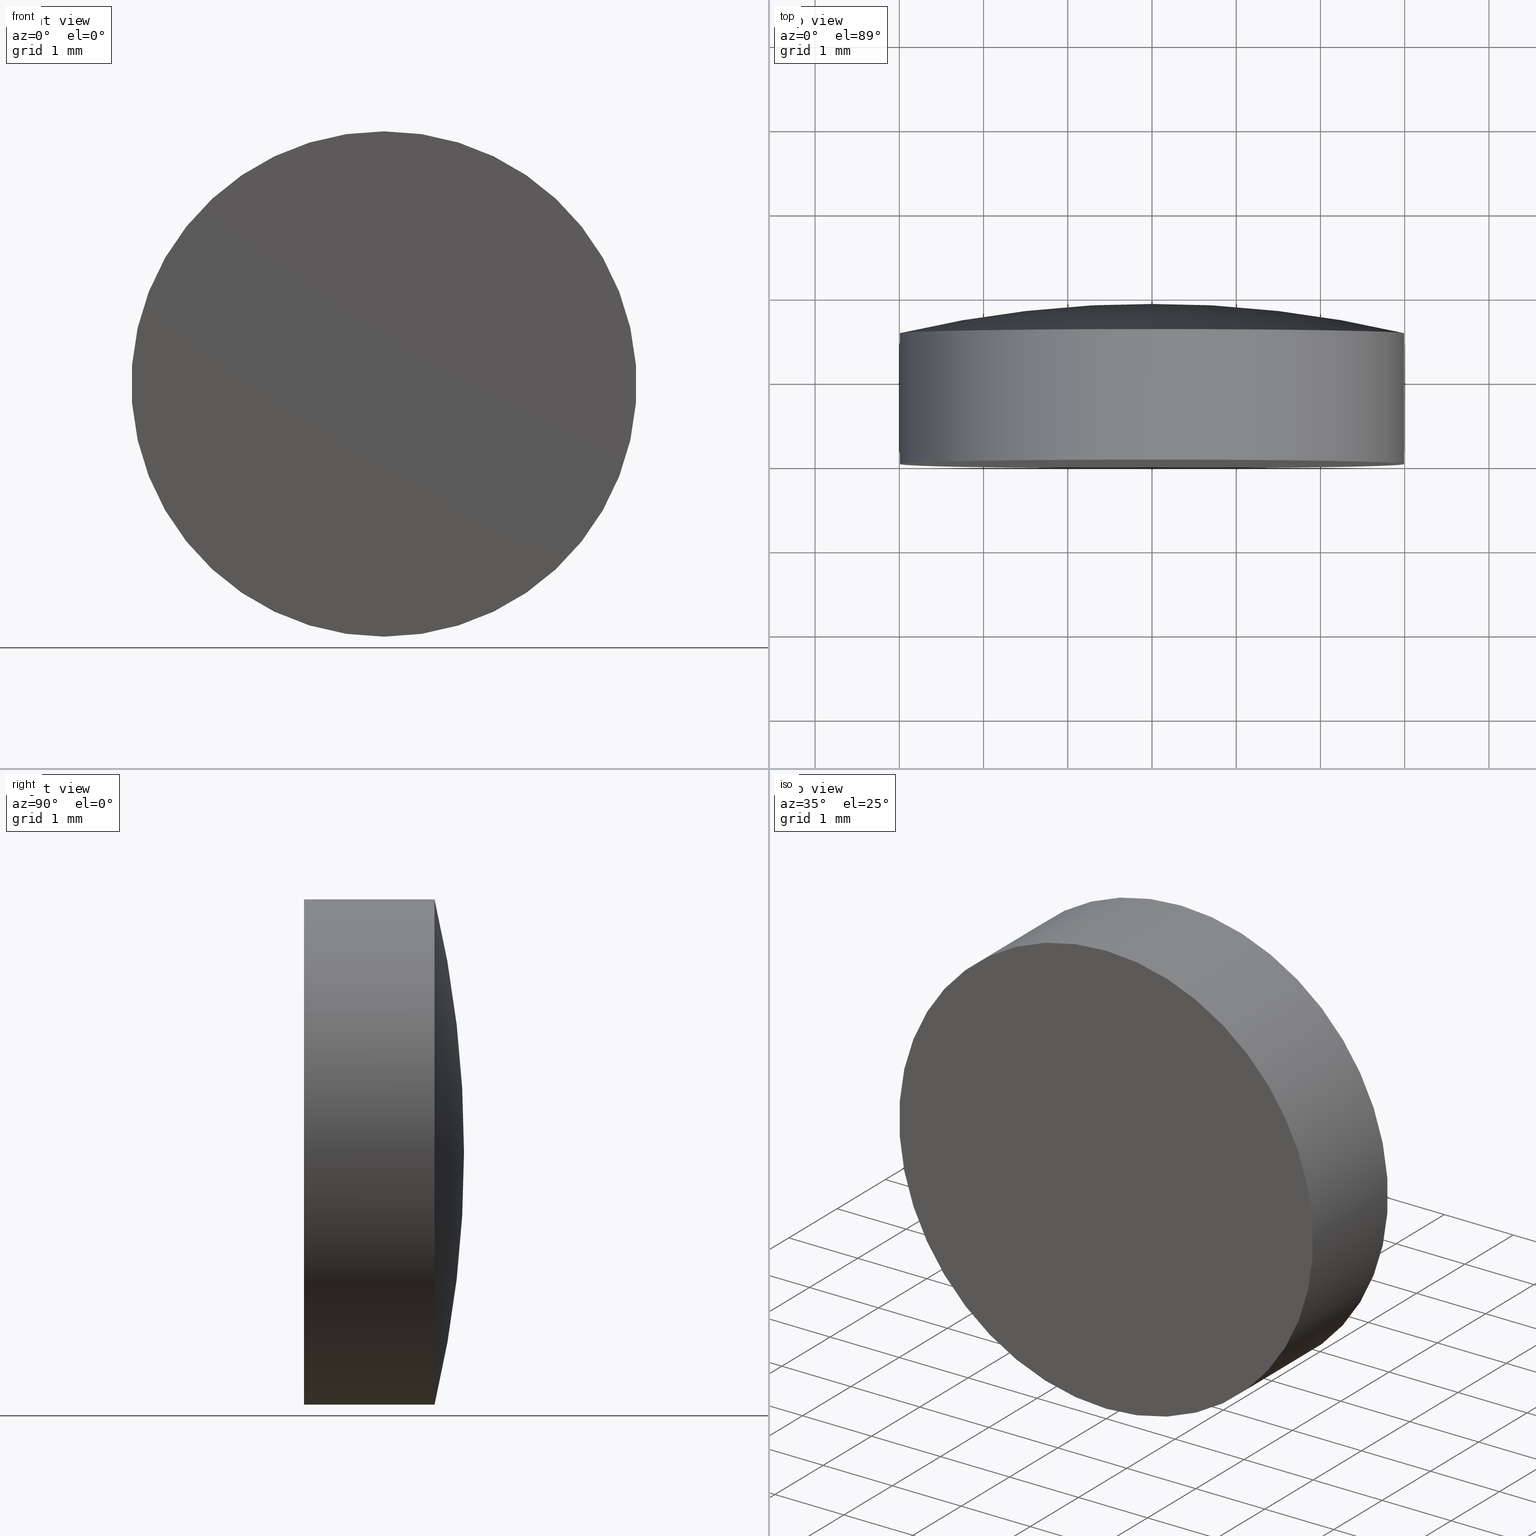
[diagram: canonical four-view strip — front | top / right | iso, engineering-drawing reading convention]
A machine part, canonical four-view strip (front | top / right | iso — engineering-drawing reading convention). The complete STEP part file that produces these views, byte-faithful:
ISO-10303-21;
HEADER;
FILE_DESCRIPTION (( 'STEP AP203' ),
    '1' );
FILE_NAME ('100587.STEP',
    '2024-05-10T01:35:32',
    ( '' ),
    ( '' ),
    'SwSTEP 2.0',
    'SolidWorks 2020',
    '' );
FILE_SCHEMA (( 'CONFIG_CONTROL_DESIGN' ));
ENDSEC;

DATA;
#1 = DIRECTION ( 'NONE',  ( -0.000000000000000000, 1.000000000000000000, -0.000000000000000000 ) ) ;
#2 = DIRECTION ( 'NONE',  ( 0.000000000000000000, 0.000000000000000000, 1.000000000000000000 ) ) ;
#3 = CYLINDRICAL_SURFACE ( 'NONE', #170, 3.000000000000000000 ) ;
#4 = AXIS2_PLACEMENT_3D ( 'NONE', #130, #193, #22 ) ;
#5 = APPROVAL ( #113, 'δָ��' ) ;
#6 = DATE_AND_TIME ( #129, #164 ) ;
#7 = COORDINATED_UNIVERSAL_TIME_OFFSET ( 8, 0, .AHEAD. ) ;
#8 = CALENDAR_DATE ( 2024, 10, 5 ) ;
#9 = APPROVAL_STATUS ( 'not_yet_approved' ) ;
#10 = ORIENTED_EDGE ( 'NONE', *, *, #43, .T. ) ;
#11 = ADVANCED_FACE ( 'NONE', ( #17 ), #42, .T. ) ;
#12 = VECTOR ( 'NONE', #157, 1000.000000000000000 ) ;
#13 = EDGE_LOOP ( 'NONE', ( #106, #10, #148, #120 ) ) ;
#14 = VERTEX_POINT ( 'NONE', #156 ) ;
#15 = DIRECTION ( 'NONE',  ( -0.000000000000000000, 1.000000000000000000, -0.000000000000000000 ) ) ;
#16 = ORIENTED_EDGE ( 'NONE', *, *, #102, .F. ) ;
#17 = FACE_OUTER_BOUND ( 'NONE', #29, .T. ) ;
#18 = DATE_AND_TIME ( #96, #175 ) ;
#19 = PERSON_AND_ORGANIZATION ( #199, #179 ) ;
#20 = AXIS2_PLACEMENT_3D ( 'NONE', #112, #1, #173 ) ;
#21 = PERSON_AND_ORGANIZATION ( #199, #179 ) ;
#22 = DIRECTION ( 'NONE',  ( 1.000000000000000000, 0.000000000000000000, 0.000000000000000000 ) ) ;
#23 = VERTEX_POINT ( 'NONE', #139 ) ;
#24 = DIRECTION ( 'NONE',  ( -0.000000000000000000, 1.000000000000000000, -0.000000000000000000 ) ) ;
#25 = PRODUCT_DEFINITION ( 'δ֪', '', #132, #93 ) ;
#26 = CARTESIAN_POINT ( 'NONE',  ( 0.000000000000000000, -4.336808689942017736E-16, 0.000000000000000000 ) ) ;
#27 = CIRCLE ( 'NONE', #100, 3.000000000000000000 ) ;
#28 = DIRECTION ( 'NONE',  ( -0.000000000000000000, 1.000000000000000000, -0.000000000000000000 ) ) ;
#29 = EDGE_LOOP ( 'NONE', ( #40, #146, #165, #149 ) ) ;
#30 = PRODUCT_DEFINITION_SHAPE ( 'NONE', 'NONE',  #25 ) ;
#31 = ADVANCED_BREP_SHAPE_REPRESENTATION ( '100587', ( #191, #4 ), #37 ) ;
#32 = SECURITY_CLASSIFICATION ( '', '', #99 ) ;
#33 = PERSON_AND_ORGANIZATION ( #199, #179 ) ;
#34 = DATE_AND_TIME ( #36, #196 ) ;
#35 = PERSON_AND_ORGANIZATION ( #199, #179 ) ;
#36 = CALENDAR_DATE ( 2024, 10, 5 ) ;
#37 =( GEOMETRIC_REPRESENTATION_CONTEXT ( 3 ) GLOBAL_UNCERTAINTY_ASSIGNED_CONTEXT ( ( #110 ) ) GLOBAL_UNIT_ASSIGNED_CONTEXT ( ( #116, #118, #161 ) ) REPRESENTATION_CONTEXT ( 'NONE', 'WORKASPACE' ) );
#38 = ADVANCED_FACE ( 'NONE', ( #127 ), #3, .T. ) ;
#39 = CIRCLE ( 'NONE', #64, 3.000000000000000000 ) ;
#40 = ORIENTED_EDGE ( 'NONE', *, *, #190, .T. ) ;
#41 = APPROVAL_PERSON_ORGANIZATION ( #19, #167, #80 ) ;
#42 = CYLINDRICAL_SURFACE ( 'NONE', #154, 3.000000000000000000 ) ;
#43 = EDGE_CURVE ( 'NONE', #14, #140, #27, .T. ) ;
#44 = CARTESIAN_POINT ( 'NONE',  ( 3.673940397442059375E-16, 1.549999999999999378, -2.999999999999999112 ) ) ;
#45 = DIRECTION ( 'NONE',  ( 0.000000000000000000, 0.000000000000000000, 1.000000000000000000 ) ) ;
#46 = TOROIDAL_SURFACE ( 'NONE', #82, 0.01425091764846756967, 12.90999999999999481 ) ;
#47 = LINE ( 'NONE', #172, #70 ) ;
#48 = CIRCLE ( 'NONE', #150, 3.000000000000000000 ) ;
#49 = CARTESIAN_POINT ( 'NONE',  ( 0.000000000000000000, 1.900000000000000133, 3.000000000000000000 ) ) ;
#50 = APPLICATION_PROTOCOL_DEFINITION ( 'international standard', 'config_control_design', 1994, #115 ) ;
#51 = APPROVAL_PERSON_ORGANIZATION ( #163, #142, #131 ) ;
#52 = CC_DESIGN_PERSON_AND_ORGANIZATION_ASSIGNMENT ( #35, #78, ( #132 ) ) ;
#53 = PERSON_AND_ORGANIZATION_ROLE ( 'creator' ) ;
#54 = DATE_AND_TIME ( #177, #103 ) ;
#55 = EDGE_CURVE ( 'NONE', #140, #134, #168, .T. ) ;
#56 = CARTESIAN_POINT ( 'NONE',  ( 0.000000000000000000, 1.900000000000000133, 0.000000000000000000 ) ) ;
#57 = CC_DESIGN_APPROVAL ( #167, ( #132 ) ) ;
#58 = DIRECTION ( 'NONE',  ( -0.000000000000000000, 1.000000000000000000, -0.000000000000000000 ) ) ;
#59 = DIRECTION ( 'NONE',  ( 0.000000000000000000, 0.000000000000000000, 1.000000000000000000 ) ) ;
#60 = DIRECTION ( 'NONE',  ( 0.000000000000000000, -1.000000000000000000, 0.000000000000000000 ) ) ;
#61 = DIRECTION ( 'NONE',  ( 0.000000000000000000, 0.000000000000000000, 1.000000000000000000 ) ) ;
#62 = PRODUCT ( '100587', '100587', '', ( #178 ) ) ;
#63 = CC_DESIGN_PERSON_AND_ORGANIZATION_ASSIGNMENT ( #33, #81, ( #62 ) ) ;
#64 = AXIS2_PLACEMENT_3D ( 'NONE', #155, #24, #94 ) ;
#65 = PERSON_AND_ORGANIZATION ( #199, #179 ) ;
#66 = APPLICATION_PROTOCOL_DEFINITION ( 'international standard', 'config_control_design', 1994, #198 ) ;
#67 = PERSON_AND_ORGANIZATION_ROLE ( 'classification_officer' ) ;
#68 = PRODUCT_RELATED_PRODUCT_CATEGORY ( 'detail', '', ( #62 ) ) ;
#69 = CIRCLE ( 'NONE', #188, 12.90999999999999481 ) ;
#70 = VECTOR ( 'NONE', #141, 1000.000000000000000 ) ;
#71 = CC_DESIGN_DATE_AND_TIME_ASSIGNMENT ( #54, #114, ( #25 ) ) ;
#72 = CARTESIAN_POINT ( 'NONE',  ( 0.000000000000000000, -1.836970198721029934E-16, 0.000000000000000000 ) ) ;
#73 = DIRECTION ( 'NONE',  ( -0.000000000000000000, 1.000000000000000000, -0.000000000000000000 ) ) ;
#74 = CC_DESIGN_APPROVAL ( #142, ( #32 ) ) ;
#75 = ORIENTED_EDGE ( 'NONE', *, *, #79, .T. ) ;
#76 = CARTESIAN_POINT ( 'NONE',  ( 1.745234068310833202E-18, -11.00999213444167957, -0.01425091764846756967 ) ) ;
#77 = CARTESIAN_POINT ( 'NONE',  ( 0.000000000000000000, -11.00999213444167957, 0.000000000000000000 ) ) ;
#78 = PERSON_AND_ORGANIZATION_ROLE ( 'design_supplier' ) ;
#79 = EDGE_CURVE ( 'NONE', #166, #134, #39, .T. ) ;
#80 = APPROVAL_ROLE ( '' ) ;
#81 = PERSON_AND_ORGANIZATION_ROLE ( 'design_owner' ) ;
#82 = AXIS2_PLACEMENT_3D ( 'NONE', #77, #15, #45 ) ;
#83 = PERSON_AND_ORGANIZATION ( #199, #179 ) ;
#84 = APPROVAL_DATE_TIME ( #18, #142 ) ;
#85 = CC_DESIGN_SECURITY_CLASSIFICATION ( #32, ( #132 ) ) ;
#86 = EDGE_LOOP ( 'NONE', ( #183, #75, #105 ) ) ;
#87 = ORIENTED_EDGE ( 'NONE', *, *, #43, .F. ) ;
#88 = ORIENTED_EDGE ( 'NONE', *, *, #119, .T. ) ;
#89 = APPROVAL_PERSON_ORGANIZATION ( #83, #5, #194 ) ;
#90 = CARTESIAN_POINT ( 'NONE',  ( 0.000000000000000000, -11.00999213444167957, 0.000000000000000000 ) ) ;
#91 = FACE_OUTER_BOUND ( 'NONE', #104, .T. ) ;
#92 = DIRECTION ( 'NONE',  ( -0.000000000000000000, 1.000000000000000000, -0.000000000000000000 ) ) ;
#93 = DESIGN_CONTEXT ( 'detailed design', #115, 'design' ) ;
#94 = DIRECTION ( 'NONE',  ( 0.000000000000000000, 0.000000000000000000, 1.000000000000000000 ) ) ;
#95 = DIRECTION ( 'NONE',  ( 0.000000000000000000, 0.000000000000000000, 1.000000000000000000 ) ) ;
#96 = CALENDAR_DATE ( 2024, 10, 5 ) ;
#97 = APPROVAL_DATE_TIME ( #34, #5 ) ;
#98 = APPROVAL_STATUS ( 'not_yet_approved' ) ;
#99 = SECURITY_CLASSIFICATION_LEVEL ( 'unclassified' ) ;
#100 = AXIS2_PLACEMENT_3D ( 'NONE', #187, #58, #2 ) ;
#101 = COORDINATED_UNIVERSAL_TIME_OFFSET ( 8, 0, .AHEAD. ) ;
#102 = EDGE_CURVE ( 'NONE', #134, #23, #128, .T. ) ;
#103 = LOCAL_TIME ( 9, 35, 32.00000000000000000, #159 ) ;
#104 = EDGE_LOOP ( 'NONE', ( #88, #126, #16 ) ) ;
#105 = ORIENTED_EDGE ( 'NONE', *, *, #102, .T. ) ;
#106 = ORIENTED_EDGE ( 'NONE', *, *, #197, .F. ) ;
#107 = FACE_OUTER_BOUND ( 'NONE', #185, .T. ) ;
#108 = TOROIDAL_SURFACE ( 'NONE', #162, 0.01425091764846756967, 12.90999999999999481 ) ;
#109 = CARTESIAN_POINT ( 'NONE',  ( 0.000000000000000000, 1.549999999999999378, 2.999999999999999112 ) ) ;
#110 = UNCERTAINTY_MEASURE_WITH_UNIT (LENGTH_MEASURE( 1.000000000000000082E-05 ), #116, 'distance_accuracy_value', 'NONE');
#111 = CARTESIAN_POINT ( 'NONE',  ( 0.000000000000000000, -4.336808689942017736E-16, 3.000000000000000000 ) ) ;
#112 = CARTESIAN_POINT ( 'NONE',  ( 0.000000000000000000, 1.549999999999999600, 0.000000000000000000 ) ) ;
#113 = APPROVAL_STATUS ( 'not_yet_approved' ) ;
#114 = DATE_TIME_ROLE ( 'creation_date' ) ;
#115 = APPLICATION_CONTEXT ( 'configuration controlled 3d designs of mechanical parts and assemblies' ) ;
#116 =( LENGTH_UNIT ( ) NAMED_UNIT ( * ) SI_UNIT ( .MILLI., .METRE. ) );
#117 = DATE_AND_TIME ( #8, #184 ) ;
#118 =( NAMED_UNIT ( * ) PLANE_ANGLE_UNIT ( ) SI_UNIT ( $, .RADIAN. ) );
#119 = EDGE_CURVE ( 'NONE', #134, #166, #135, .T. ) ;
#120 = ORIENTED_EDGE ( 'NONE', *, *, #79, .F. ) ;
#121 = DIRECTION ( 'NONE',  ( 1.000000000000000000, 0.000000000000000000, 1.224646799147353207E-16 ) ) ;
#122 = CC_DESIGN_PERSON_AND_ORGANIZATION_ASSIGNMENT ( #21, #67, ( #32 ) ) ;
#123 = CC_DESIGN_PERSON_AND_ORGANIZATION_ASSIGNMENT ( #65, #174, ( #25 ) ) ;
#124 = DIRECTION ( 'NONE',  ( 0.000000000000000000, 0.000000000000000000, 1.000000000000000000 ) ) ;
#125 = AXIS2_PLACEMENT_3D ( 'NONE', #72, #60, #200 ) ;
#126 = ORIENTED_EDGE ( 'NONE', *, *, #152, .T. ) ;
#127 = FACE_OUTER_BOUND ( 'NONE', #13, .T. ) ;
#128 = CIRCLE ( 'NONE', #181, 12.90999999999999481 ) ;
#129 = CALENDAR_DATE ( 2024, 10, 5 ) ;
#130 = CARTESIAN_POINT ( 'NONE',  ( 0.000000000000000000, 0.000000000000000000, 0.000000000000000000 ) ) ;
#131 = APPROVAL_ROLE ( '' ) ;
#132 = PRODUCT_DEFINITION_FORMATION_WITH_SPECIFIED_SOURCE ( '�κ�', '', #62, .NOT_KNOWN. ) ;
#133 = ADVANCED_FACE ( 'NONE', ( #91 ), #46, .T. ) ;
#134 = VERTEX_POINT ( 'NONE', #109 ) ;
#135 = CIRCLE ( 'NONE', #20, 3.000000000000000000 ) ;
#136 = FACE_OUTER_BOUND ( 'NONE', #86, .T. ) ;
#137 = ADVANCED_FACE ( 'NONE', ( #136 ), #108, .T. ) ;
#138 = DIRECTION ( 'NONE',  ( 0.000000000000000000, 0.000000000000000000, 1.000000000000000000 ) ) ;
#139 = CARTESIAN_POINT ( 'NONE',  ( 0.000000000000000000, 1.900000000000000133, 0.000000000000000000 ) ) ;
#140 = VERTEX_POINT ( 'NONE', #111 ) ;
#141 = DIRECTION ( 'NONE',  ( -0.000000000000000000, 1.000000000000000000, -0.000000000000000000 ) ) ;
#142 = APPROVAL ( #9, 'δָ��' ) ;
#143 = CLOSED_SHELL ( 'NONE', ( #11, #133, #137, #176, #38 ) ) ;
#144 = COORDINATED_UNIVERSAL_TIME_OFFSET ( 8, 0, .AHEAD. ) ;
#145 = PERSON_AND_ORGANIZATION ( #199, #179 ) ;
#146 = ORIENTED_EDGE ( 'NONE', *, *, #197, .T. ) ;
#147 = CC_DESIGN_APPROVAL ( #5, ( #25 ) ) ;
#148 = ORIENTED_EDGE ( 'NONE', *, *, #55, .T. ) ;
#149 = ORIENTED_EDGE ( 'NONE', *, *, #55, .F. ) ;
#150 = AXIS2_PLACEMENT_3D ( 'NONE', #26, #189, #59 ) ;
#151 = PLANE ( 'NONE',  #125 ) ;
#152 = EDGE_CURVE ( 'NONE', #166, #23, #69, .T. ) ;
#153 = DIRECTION ( 'NONE',  ( -1.000000000000000000, 0.000000000000000000, 0.000000000000000000 ) ) ;
#154 = AXIS2_PLACEMENT_3D ( 'NONE', #169, #73, #95 ) ;
#155 = CARTESIAN_POINT ( 'NONE',  ( 0.000000000000000000, 1.549999999999999600, 0.000000000000000000 ) ) ;
#156 = CARTESIAN_POINT ( 'NONE',  ( 3.673940397442059868E-16, -4.336808689942017736E-16, -3.000000000000000000 ) ) ;
#157 = DIRECTION ( 'NONE',  ( -0.000000000000000000, 1.000000000000000000, -0.000000000000000000 ) ) ;
#158 = DATE_TIME_ROLE ( 'classification_date' ) ;
#159 = COORDINATED_UNIVERSAL_TIME_OFFSET ( 8, 0, .AHEAD. ) ;
#160 = CC_DESIGN_DATE_AND_TIME_ASSIGNMENT ( #117, #158, ( #32 ) ) ;
#161 =( NAMED_UNIT ( * ) SI_UNIT ( $, .STERADIAN. ) SOLID_ANGLE_UNIT ( ) );
#162 = AXIS2_PLACEMENT_3D ( 'NONE', #90, #92, #138 ) ;
#163 = PERSON_AND_ORGANIZATION ( #199, #179 ) ;
#164 = LOCAL_TIME ( 9, 35, 32.00000000000000000, #101 ) ;
#165 = ORIENTED_EDGE ( 'NONE', *, *, #119, .F. ) ;
#166 = VERTEX_POINT ( 'NONE', #44 ) ;
#167 = APPROVAL ( #98, 'δָ��' ) ;
#168 = LINE ( 'NONE', #49, #12 ) ;
#169 = CARTESIAN_POINT ( 'NONE',  ( 0.000000000000000000, 1.900000000000000133, 0.000000000000000000 ) ) ;
#170 = AXIS2_PLACEMENT_3D ( 'NONE', #56, #28, #61 ) ;
#171 = ORIENTED_EDGE ( 'NONE', *, *, #190, .F. ) ;
#172 = CARTESIAN_POINT ( 'NONE',  ( 3.673940397442059868E-16, 1.900000000000000133, -3.000000000000000000 ) ) ;
#173 = DIRECTION ( 'NONE',  ( 0.000000000000000000, 0.000000000000000000, 1.000000000000000000 ) ) ;
#174 = PERSON_AND_ORGANIZATION_ROLE ( 'creator' ) ;
#175 = LOCAL_TIME ( 9, 35, 32.00000000000000000, #195 ) ;
#176 = ADVANCED_FACE ( 'NONE', ( #107 ), #151, .T. ) ;
#177 = CALENDAR_DATE ( 2024, 10, 5 ) ;
#178 = MECHANICAL_CONTEXT ( 'NONE', #198, 'mechanical' ) ;
#179 = ORGANIZATION ( 'δָ��', 'δָ��', '' ) ;
#180 = SHAPE_DEFINITION_REPRESENTATION ( #30, #31 ) ;
#181 = AXIS2_PLACEMENT_3D ( 'NONE', #201, #153, #124 ) ;
#182 = CC_DESIGN_PERSON_AND_ORGANIZATION_ASSIGNMENT ( #145, #53, ( #132 ) ) ;
#183 = ORIENTED_EDGE ( 'NONE', *, *, #152, .F. ) ;
#184 = LOCAL_TIME ( 9, 35, 32.00000000000000000, #144 ) ;
#185 = EDGE_LOOP ( 'NONE', ( #171, #87 ) ) ;
#186 = DIRECTION ( 'NONE',  ( 1.224646799147353207E-16, 0.000000000000000000, -1.000000000000000000 ) ) ;
#187 = CARTESIAN_POINT ( 'NONE',  ( 0.000000000000000000, -4.336808689942017736E-16, 0.000000000000000000 ) ) ;
#188 = AXIS2_PLACEMENT_3D ( 'NONE', #76, #121, #186 ) ;
#189 = DIRECTION ( 'NONE',  ( -0.000000000000000000, 1.000000000000000000, -0.000000000000000000 ) ) ;
#190 = EDGE_CURVE ( 'NONE', #140, #14, #48, .T. ) ;
#191 = MANIFOLD_SOLID_BREP ( '��ת1', #143 ) ;
#192 = APPROVAL_DATE_TIME ( #6, #167 ) ;
#193 = DIRECTION ( 'NONE',  ( 0.000000000000000000, 0.000000000000000000, 1.000000000000000000 ) ) ;
#194 = APPROVAL_ROLE ( '' ) ;
#195 = COORDINATED_UNIVERSAL_TIME_OFFSET ( 8, 0, .AHEAD. ) ;
#196 = LOCAL_TIME ( 9, 35, 32.00000000000000000, #7 ) ;
#197 = EDGE_CURVE ( 'NONE', #14, #166, #47, .T. ) ;
#198 = APPLICATION_CONTEXT ( 'configuration controlled 3d designs of mechanical parts and assemblies' ) ;
#199 = PERSON ( 'δָ��', 'δָ��', 'δָ��', ('δָ��'), ('δָ��'), ('δָ��') ) ;
#200 = DIRECTION ( 'NONE',  ( 0.000000000000000000, -0.000000000000000000, -1.000000000000000000 ) ) ;
#201 = CARTESIAN_POINT ( 'NONE',  ( 0.000000000000000000, -11.00999213444167957, 0.01425091764846756967 ) ) ;
ENDSEC;
END-ISO-10303-21;
